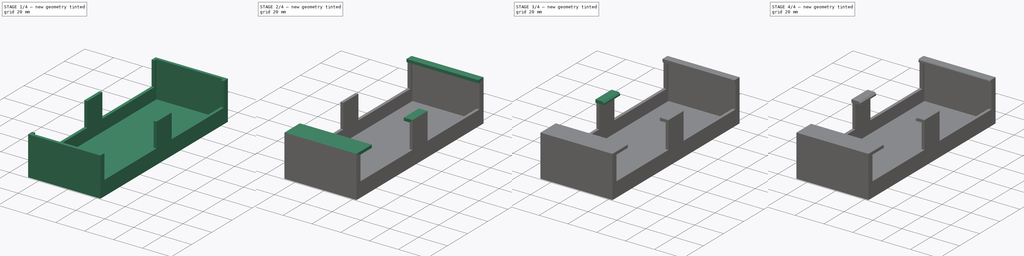
[diagram: build sequence overview — one tinted view per stage of 4, left to right]
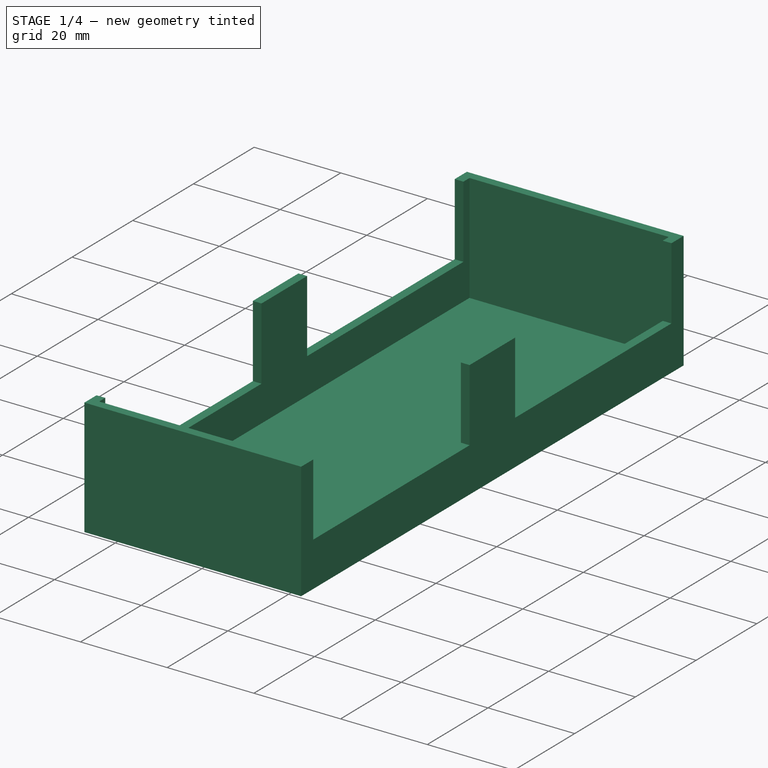
[diagram: stage 1 of 4 — iso view after this stage's code; geometry added in this stage tinted green]
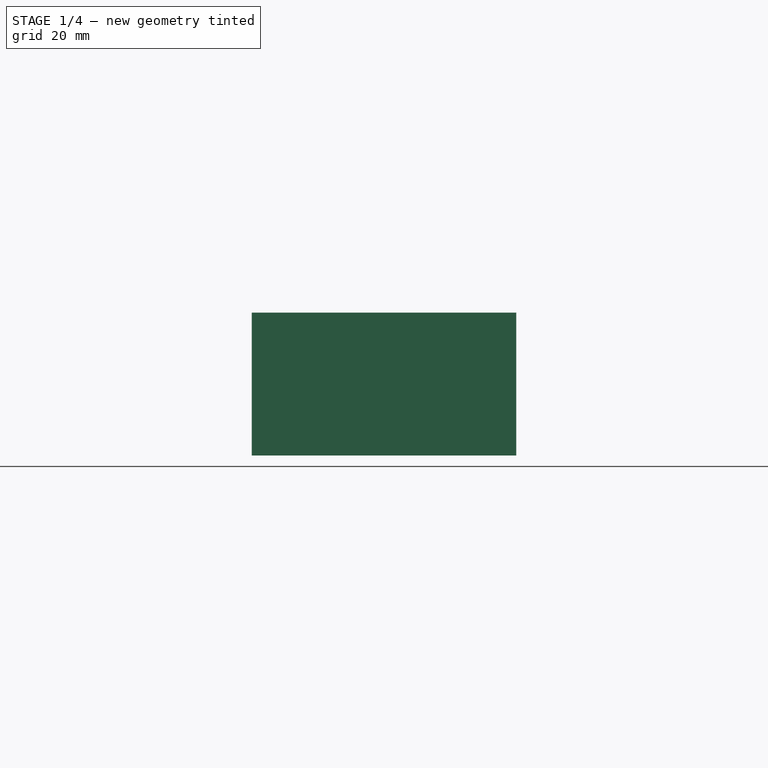
[diagram: stage 1 of 4 — front view after this stage's code; geometry added in this stage tinted green]
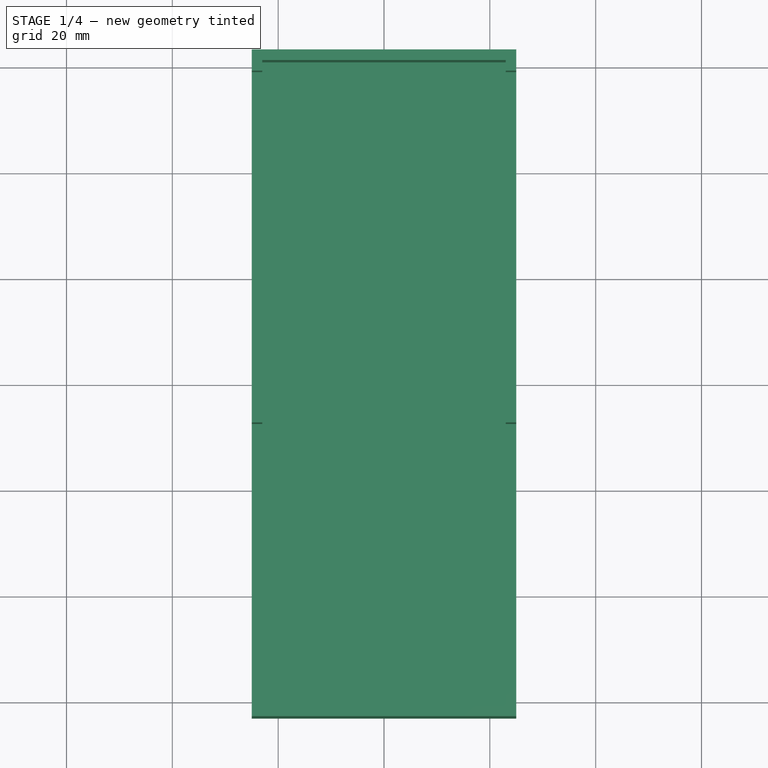
[diagram: stage 1 of 4 — top view after this stage's code; geometry added in this stage tinted green]
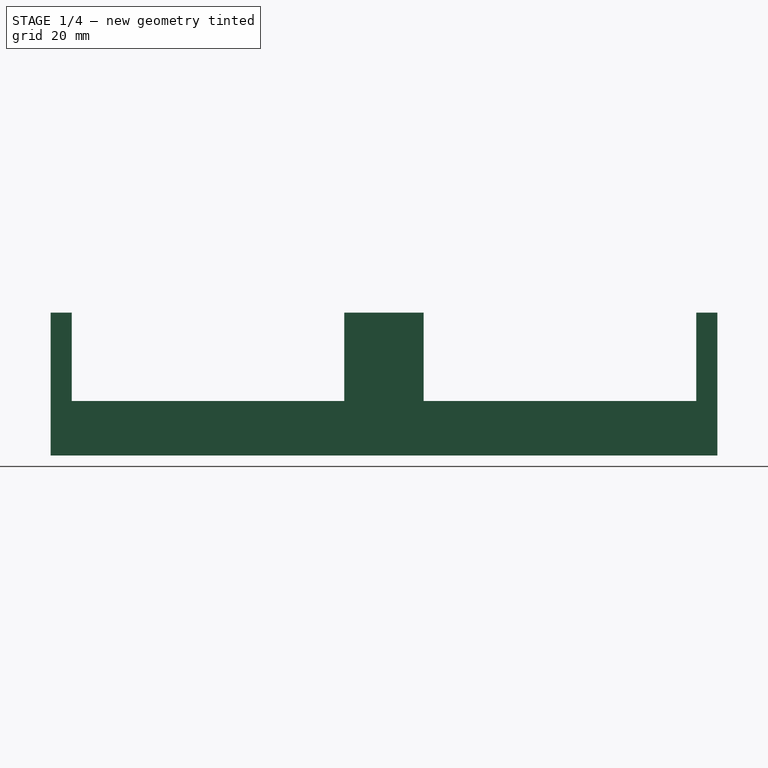
[diagram: stage 1 of 4 — right view after this stage's code; geometry added in this stage tinted green]
FCSTD DOCUMENT  (FreeCAD 1.0R39109 (Git))
Label: fisher-SBX1530K-remote-holder-v2
License: All rights reserved
LicenseURL: https://en.wikipedia.org/wiki/All_rights_reserved
objects: Sketcher::SketchObject×6, PartDesign::Pad×5, TechDraw::DrawProjGroupItem×3, PartDesign::Chamfer×2, PartDesign::Fillet×2, App::VarSet×1, PartDesign::Thickness×1, PartDesign::Pocket×1, PartDesign::Body×1, TechDraw::DrawSVGTemplate×1, TechDraw::DrawProjGroup×1, TechDraw::DrawPage×1
note: 46 computed .brp shape members not serialized (recipe doc carries the construction recipe); baked Part::Feature solids carry a one-line shape summary decoded from their .brp

FEATURE [Sketcher::SketchObject] Sketch
  ArcFitTolerance = 1e-06
  AttachmentSupport = -> [XY_Plane]
  FullyConstrained = true
  MakeInternals = false
  MapMode = 5
  expr: Constraints[10] = VarSet.width
  expr: Constraints[9] = VarSet.length
  sketch-geometry (4):
    g0: LineSegment StartX=-25 StartY=63 StartZ=0 EndX=-25 EndY=-63 EndZ=0
    g1: LineSegment StartX=-25 StartY=-63 StartZ=0 EndX=25 EndY=-63 EndZ=0
    g2: LineSegment StartX=25 StartY=-63 StartZ=0 EndX=25 EndY=63 EndZ=0
    g3: LineSegment StartX=25 StartY=63 StartZ=0 EndX=-25 EndY=63 EndZ=0
  constraints (11):
    c: Coincident(g0,g1)
    c: Coincident(g1,g2)
    c: Coincident(g2,g3)
    c: Coincident(g3,g0)
    c: Vertical(g0)
    c: Vertical(g2)
    c: Horizontal(g1)
    c: Horizontal(g3)
    c: Symmetric(g0,g1,g-1)
    c: DistanceY(g2,g2) = 126
    c: DistanceX(g3,g3) = 50
FEATURE [App::VarSet] VarSet
  box_depth = 27
  length = 126
  side_clip_width = 15
  width = 50
FEATURE [PartDesign::Pad] Pad
  Direction = (0,0,1)
  Length = 27
  Length2 = 10
  Profile = -> Sketch
  ReferenceAxis = -> Sketch [N_Axis]
  Refine = true
  Suppressed = false
  Type = 0
  expr: Length = VarSet.box_depth
FEATURE [PartDesign::Thickness] Thickness
  Base = -> Pad [Face6]
  BaseFeature = -> Pad
  Intersection = false
  Join = 0
  Mode = 0
  Refine = true
  Reversed = true
  SupportTransform = false
  Suppressed = false
  Value = 2
FEATURE [Sketcher::SketchObject] Sketch001
  ArcFitTolerance = 1e-06
  AttachmentSupport = -> [Thickness]
  ExternalGeometry = -> [Thickness]
  FullyConstrained = true
  MakeInternals = false
  MapMode = 5
  Placement = pos=(25,0,0) rot=(0.57735,0.57735,0.57735;2.0944rad)
  expr: Constraints[22] = VarSet.side_clip_width
  sketch-geometry (8):
    g0: LineSegment StartX=-59 StartY=27 StartZ=0 EndX=-59 EndY=10.28 EndZ=0
    g1: LineSegment StartX=-59 StartY=10.28 StartZ=0 EndX=-7.5 EndY=10.28 EndZ=0
    g2: LineSegment StartX=-7.5 StartY=10.28 StartZ=0 EndX=-7.5 EndY=27 EndZ=0
    g3: LineSegment StartX=-7.5 StartY=27 StartZ=0 EndX=-59 EndY=27 EndZ=0
    g4: LineSegment StartX=7.5 StartY=27 StartZ=0 EndX=7.5 EndY=10.28 EndZ=0
    g5: LineSegment StartX=7.5 StartY=10.28 StartZ=0 EndX=59 EndY=10.28 EndZ=0
    g6: LineSegment StartX=59 StartY=10.28 StartZ=0 EndX=59 EndY=27 EndZ=0
    g7: LineSegment StartX=59 StartY=27 StartZ=0 EndX=7.5 EndY=27 EndZ=0
  constraints (24):
    c: Coincident(g0,g1)
    c: Coincident(g1,g2)
    c: Coincident(g2,g3)
    c: Coincident(g3,g0)
    c: Vertical(g0)
    c: Vertical(g2)
    c: Horizontal(g1)
    c: Horizontal(g3)
    c: PointOnObject(g0,g-4)
    c: DistanceY(g0,g0) = 16.72
    c: Distance(g0,g-3) = 4
    c: Coincident(g4,g5)
    c: Coincident(g5,g6)
    c: Coincident(g6,g7)
    c: Coincident(g7,g4)
    c: Vertical(g4)
    c: Vertical(g6)
    c: Horizontal(g5)
    c: Horizontal(g7)
    c: PointOnObject(g4,g-4)
    c: Distance(g6,g-5) = 4
    c: Equal(g4,g2)
    c: DistanceX(g1,g4) = 15
    c: Equal(g3,g7)
FEATURE [PartDesign::Pocket] Pocket
  BaseFeature = -> Thickness
  Direction = (-1,0,0)
  Length = 5
  Length2 = 5
  Profile = -> Sketch001
  ReferenceAxis = -> Sketch001 [N_Axis]
  Refine = true
  Suppressed = false
  Type = 1
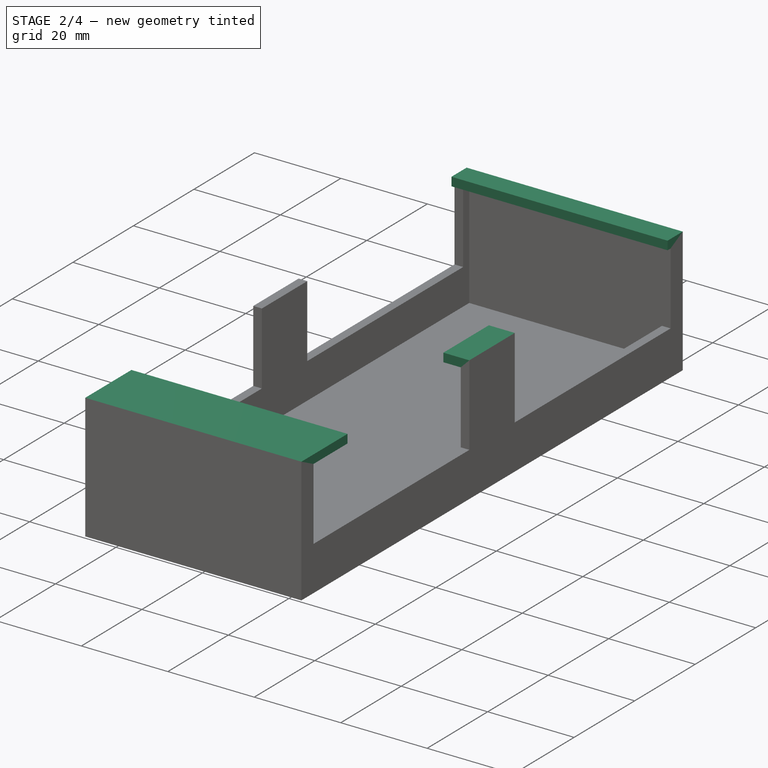
[diagram: stage 2 of 4 — iso view after this stage's code; geometry added in this stage tinted green]
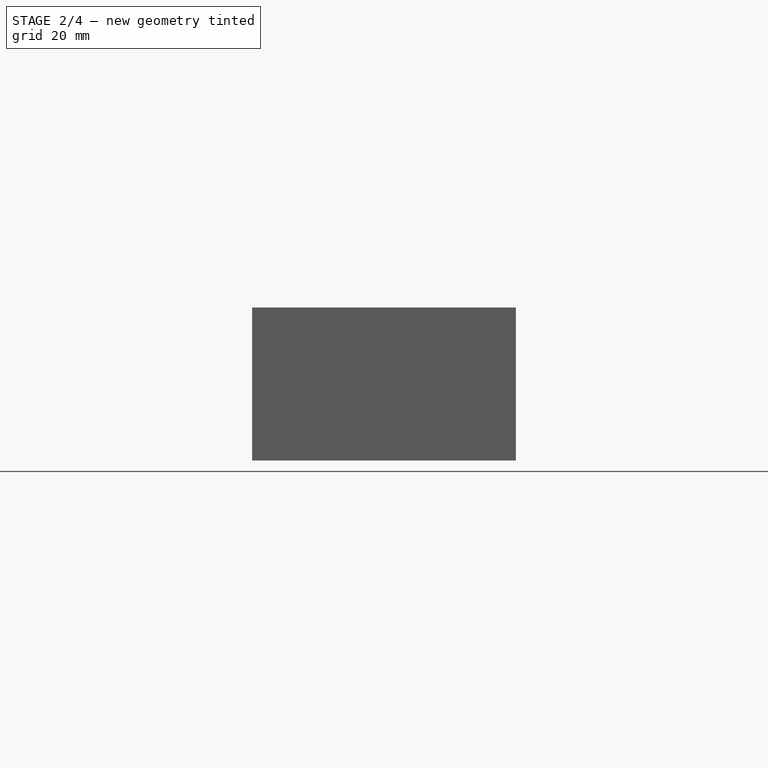
[diagram: stage 2 of 4 — front view after this stage's code; geometry added in this stage tinted green]
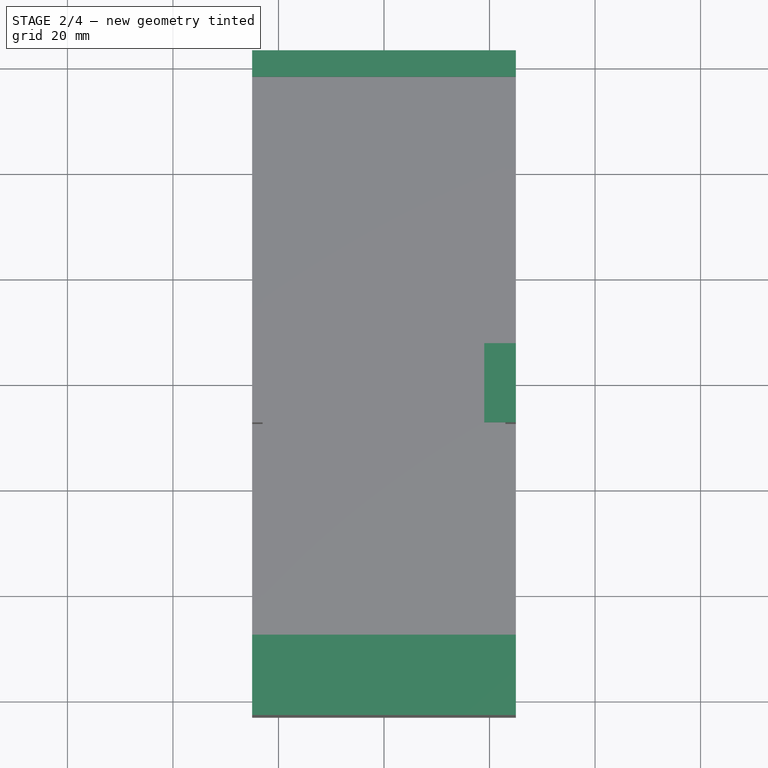
[diagram: stage 2 of 4 — top view after this stage's code; geometry added in this stage tinted green]
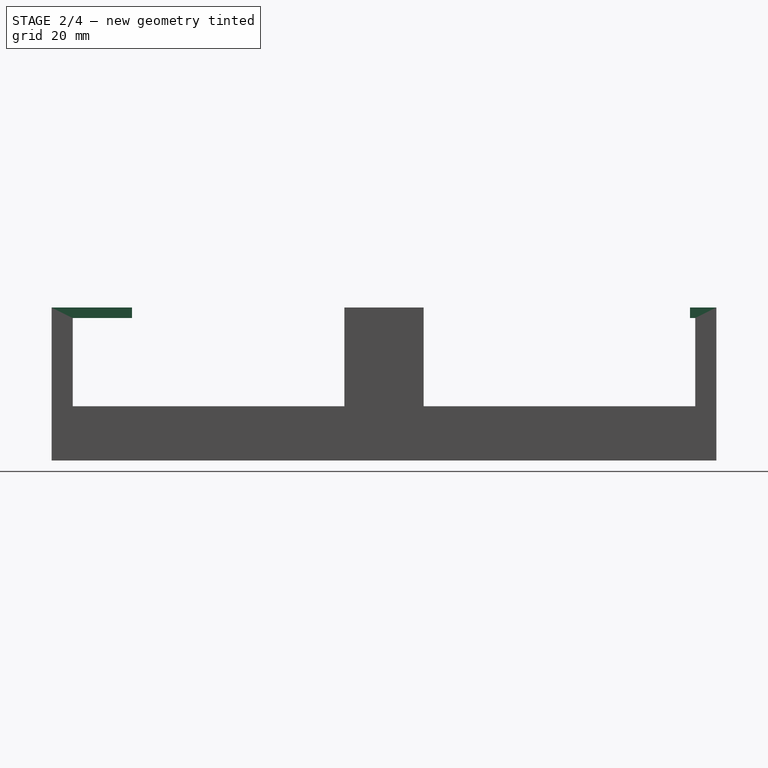
[diagram: stage 2 of 4 — right view after this stage's code; geometry added in this stage tinted green]
FEATURE [Sketcher::SketchObject] Sketch002
  ArcFitTolerance = 1e-06
  AttachmentSupport = -> [Pocket]
  ExternalGeometry = -> [Pocket]
  FullyConstrained = true
  MakeInternals = false
  MapMode = 5
  Placement = pos=(0,0,27) rot=(0,0,1;0rad)
  sketch-geometry (4):
    g0: LineSegment StartX=-25 StartY=-47.76 StartZ=0 EndX=-25 EndY=-63 EndZ=0
    g1: LineSegment StartX=-25 StartY=-63 StartZ=0 EndX=25 EndY=-63 EndZ=0
    g2: LineSegment StartX=25 StartY=-63 StartZ=0 EndX=25 EndY=-47.76 EndZ=0
    g3: LineSegment StartX=25 StartY=-47.76 StartZ=0 EndX=-25 EndY=-47.76 EndZ=0
  constraints (10):
    c: Coincident(g0,g1)
    c: Coincident(g1,g2)
    c: Coincident(g2,g3)
    c: Coincident(g3,g0)
    c: Vertical(g0)
    c: Vertical(g2)
    c: Horizontal(g3)
    c: Coincident(g1,g-3)
    c: DistanceY(g2,g2) = 15.24
    c: Coincident(g0,g-3)
FEATURE [PartDesign::Pad] Pad001
  BaseFeature = -> Pocket
  Direction = (0,0,1)
  Length = 2
  Length2 = 10
  Profile = -> Sketch002
  ReferenceAxis = -> Sketch002 [N_Axis]
  Refine = true
  Suppressed = false
  Type = 0
FEATURE [Sketcher::SketchObject] Sketch003
  ArcFitTolerance = 1e-06
  AttachmentSupport = -> [Pad001]
  ExternalGeometry = -> [Pad001]
  FullyConstrained = true
  MakeInternals = false
  MapMode = 5
  Placement = pos=(0,0,27) rot=(0,0,1;0rad)
  sketch-geometry (4):
    g0: LineSegment StartX=-25 StartY=63 StartZ=0 EndX=-25 EndY=58 EndZ=0
    g1: LineSegment StartX=-25 StartY=58 StartZ=0 EndX=25 EndY=58 EndZ=0
    g2: LineSegment StartX=25 StartY=58 StartZ=0 EndX=25 EndY=63 EndZ=0
    g3: LineSegment StartX=25 StartY=63 StartZ=0 EndX=-25 EndY=63 EndZ=0
  constraints (10):
    c: Coincident(g0,g1)
    c: Coincident(g1,g2)
    c: Coincident(g2,g3)
    c: Coincident(g3,g0)
    c: Vertical(g0)
    c: Vertical(g2)
    c: Horizontal(g1)
    c: Coincident(g0,g-4)
    c: DistanceY(g0,g0) = 5
    c: Coincident(g-4,g2)
FEATURE [PartDesign::Pad] Pad002
  BaseFeature = -> Pad001
  Direction = (0,0,1)
  Length = 2
  Length2 = 10
  Profile = -> Sketch003
  ReferenceAxis = -> Sketch003 [N_Axis]
  Refine = true
  Suppressed = false
  Type = 0
FEATURE [Sketcher::SketchObject] Sketch004
  ArcFitTolerance = 1e-06
  AttachmentSupport = -> [Pad002]
  ExternalGeometry = -> [Pad002]
  FullyConstrained = true
  MakeInternals = false
  MapMode = 5
  Placement = pos=(0,0,27) rot=(0,0,1;0rad)
  expr: Constraints[10] = VarSet.side_clip_width
  sketch-geometry (4):
    g0: LineSegment StartX=25 StartY=7.5 StartZ=0 EndX=19 EndY=7.5 EndZ=0
    g1: LineSegment StartX=19 StartY=7.5 StartZ=0 EndX=19 EndY=-7.5 EndZ=0
    g2: LineSegment StartX=19 StartY=-7.5 StartZ=0 EndX=25 EndY=-7.5 EndZ=0
    g3: LineSegment StartX=25 StartY=-7.5 StartZ=0 EndX=25 EndY=7.5 EndZ=0
  constraints (11):
    c: Coincident(g0,g1)
    c: Coincident(g1,g2)
    c: Coincident(g2,g3)
    c: Coincident(g3,g0)
    c: Horizontal(g0)
    c: Horizontal(g2)
    c: Vertical(g1)
    c: Vertical(g3)
    c: Coincident(g0,g-3)
    c: DistanceX(g0,g0) = 6
    c: DistanceY(g1,g1) = 15
FEATURE [PartDesign::Pad] Pad003
  BaseFeature = -> Pad002
  Direction = (0,0,1)
  Length = 2
  Length2 = 10
  Profile = -> Sketch004
  ReferenceAxis = -> Sketch004 [N_Axis]
  Refine = true
  Suppressed = false
  Type = 0
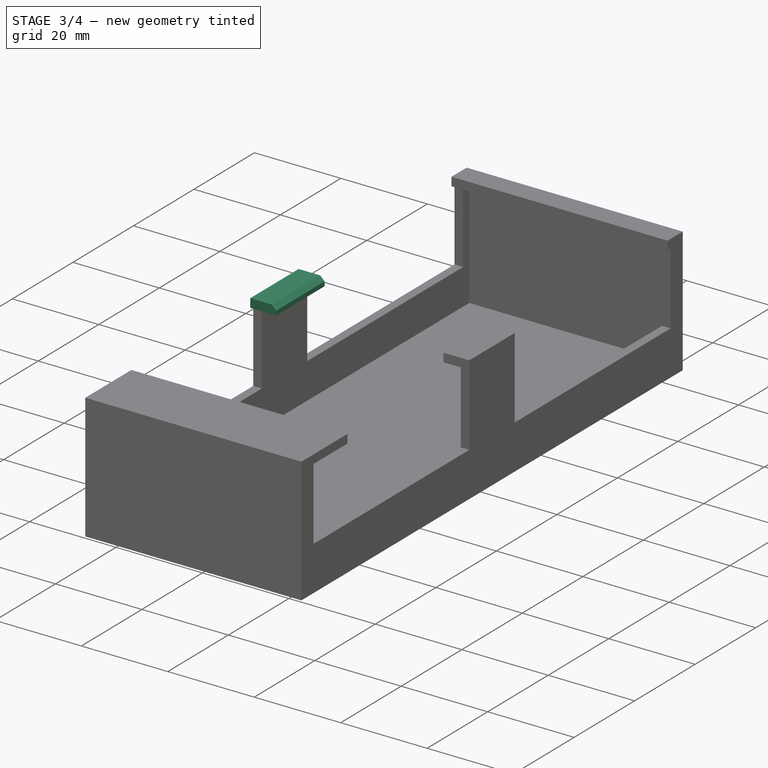
[diagram: stage 3 of 4 — iso view after this stage's code; geometry added in this stage tinted green]
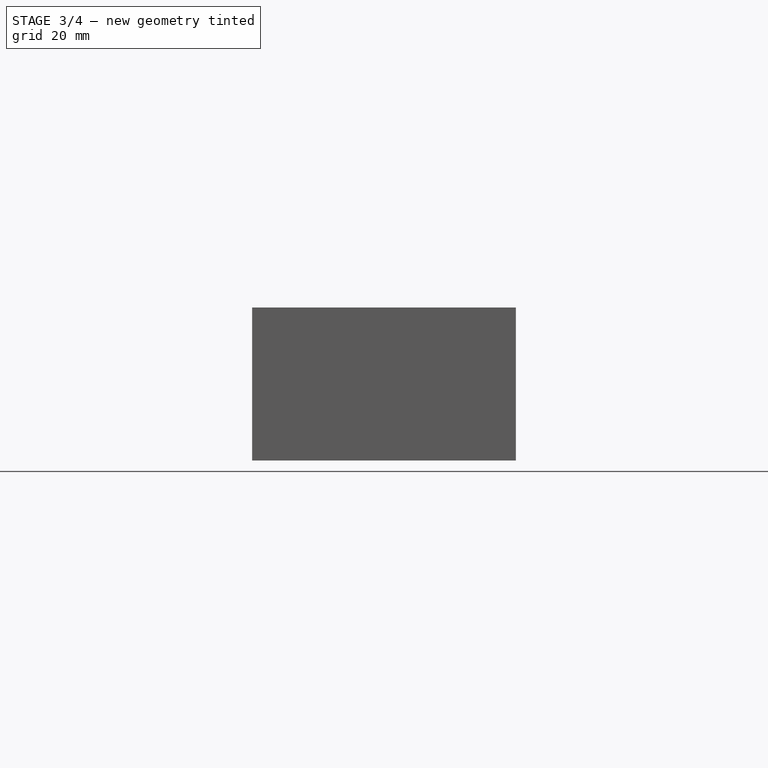
[diagram: stage 3 of 4 — front view after this stage's code; geometry added in this stage tinted green]
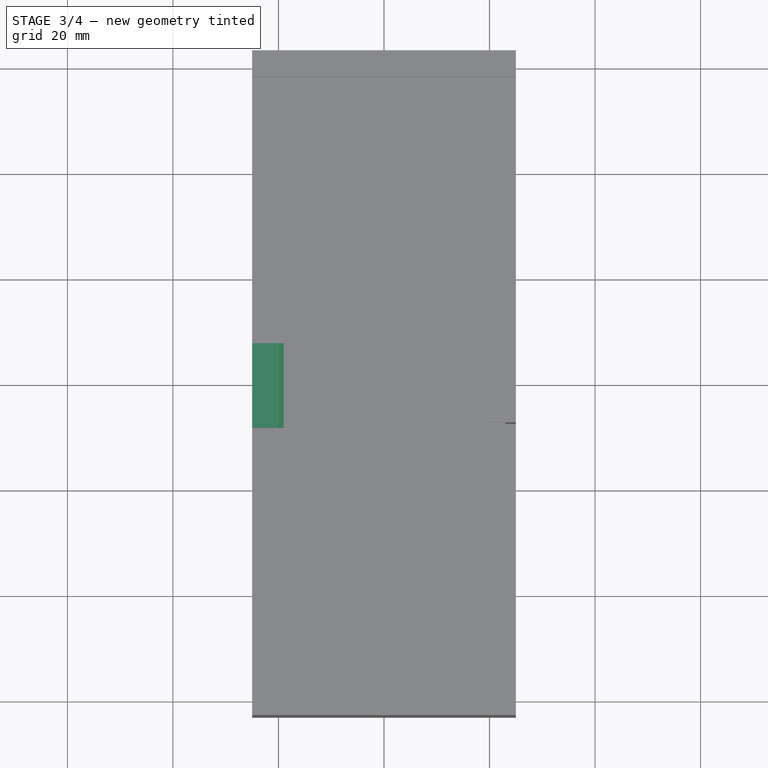
[diagram: stage 3 of 4 — top view after this stage's code; geometry added in this stage tinted green]
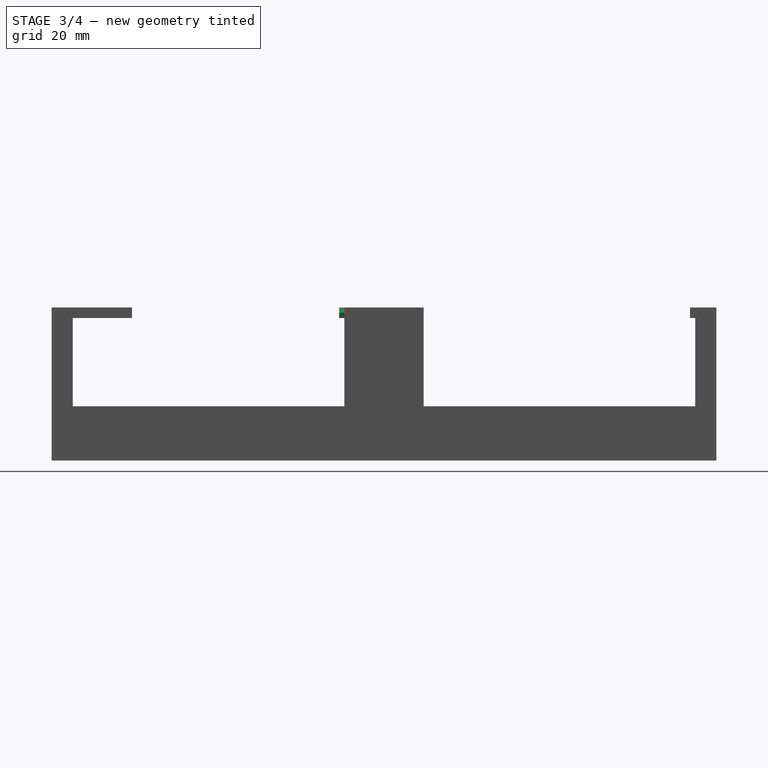
[diagram: stage 3 of 4 — right view after this stage's code; geometry added in this stage tinted green]
FEATURE [Sketcher::SketchObject] Sketch005
  ArcFitTolerance = 1e-06
  AttachmentSupport = -> [Pad003]
  ExternalGeometry = -> [Pad003]
  FullyConstrained = true
  MakeInternals = false
  MapMode = 5
  Placement = pos=(0,0,27) rot=(0,0,1;0rad)
  sketch-geometry (4):
    g0: LineSegment StartX=-25 StartY=7.5 StartZ=0 EndX=-25 EndY=-8.5 EndZ=0
    g1: LineSegment StartX=-25 StartY=-8.5 StartZ=0 EndX=-19 EndY=-8.5 EndZ=0
    g2: LineSegment StartX=-19 StartY=-8.5 StartZ=0 EndX=-19 EndY=7.5 EndZ=0
    g3: LineSegment StartX=-19 StartY=7.5 StartZ=0 EndX=-25 EndY=7.5 EndZ=0
  constraints (11):
    c: Coincident(g0,g1)
    c: Coincident(g1,g2)
    c: Coincident(g2,g3)
    c: Coincident(g3,g0)
    c: Vertical(g0)
    c: Vertical(g2)
    c: Horizontal(g1)
    c: Horizontal(g3)
    c: DistanceX(g3,g3) = 6
    c: DistanceY(g2,g2) = 16
    c: Coincident(g-3,g0)
FEATURE [PartDesign::Pad] Pad004
  BaseFeature = -> Pad003
  Direction = (0,0,1)
  Length = 2
  Length2 = 10
  Profile = -> Sketch005
  ReferenceAxis = -> Sketch005 [N_Axis]
  Refine = true
  Suppressed = false
  Type = 0
FEATURE [PartDesign::Chamfer] Chamfer
  Angle = 45
  Base = -> Pad004 [Edge96]
  BaseFeature = -> Pad004
  ChamferType = 0
  FlipDirection = false
  Refine = true
  Size = 1
  Size2 = 1
  SupportTransform = false
  Suppressed = false
  UseAllEdges = false
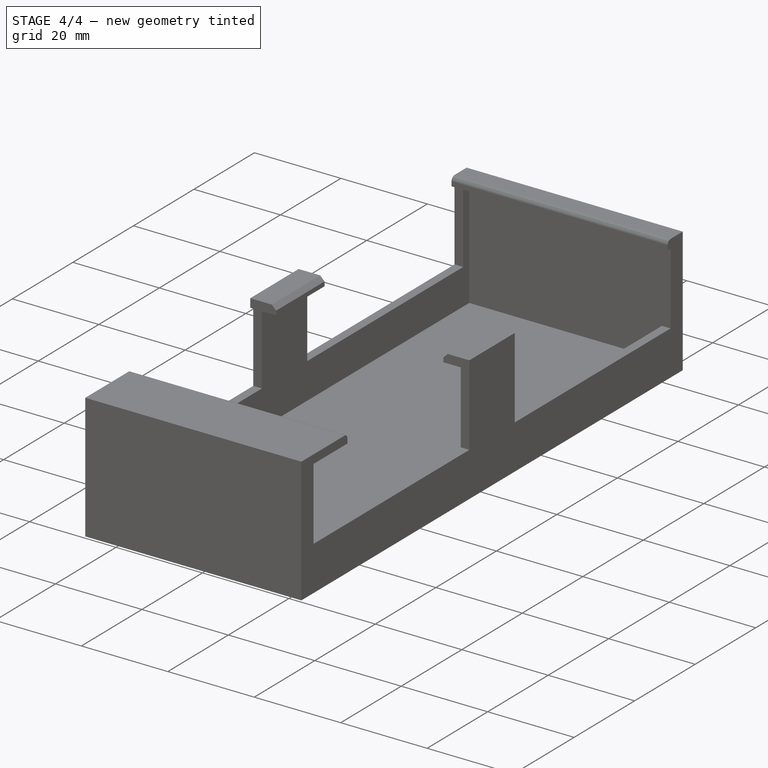
[diagram: stage 4 of 4 — iso view after this stage's code; geometry added in this stage tinted green]
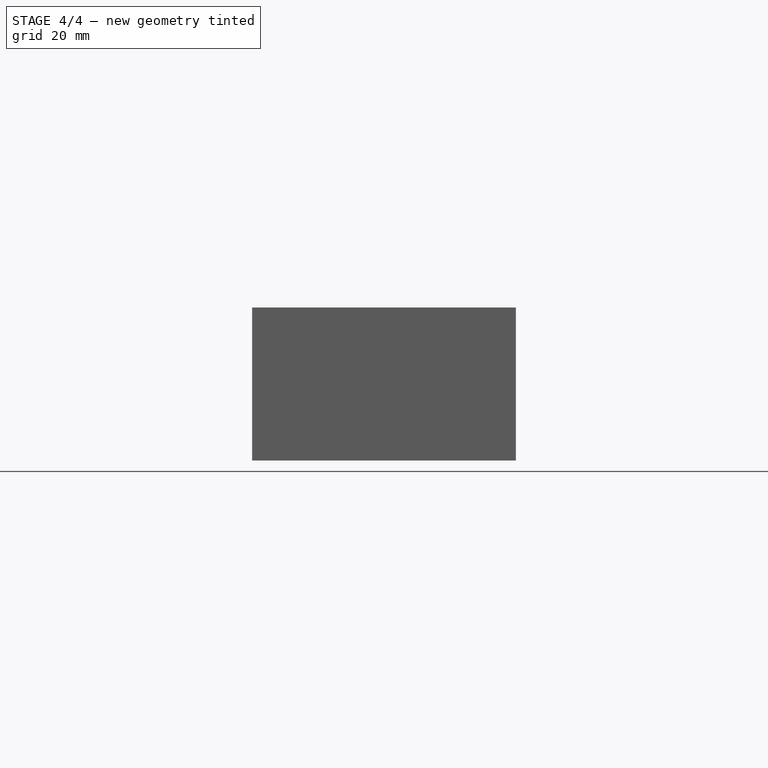
[diagram: stage 4 of 4 — front view after this stage's code; geometry added in this stage tinted green]
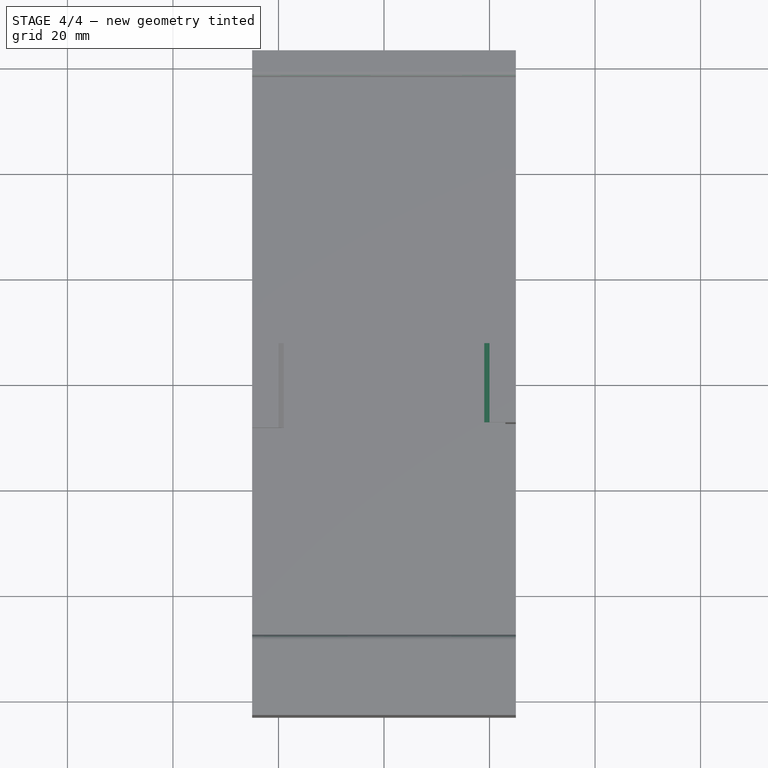
[diagram: stage 4 of 4 — top view after this stage's code; geometry added in this stage tinted green]
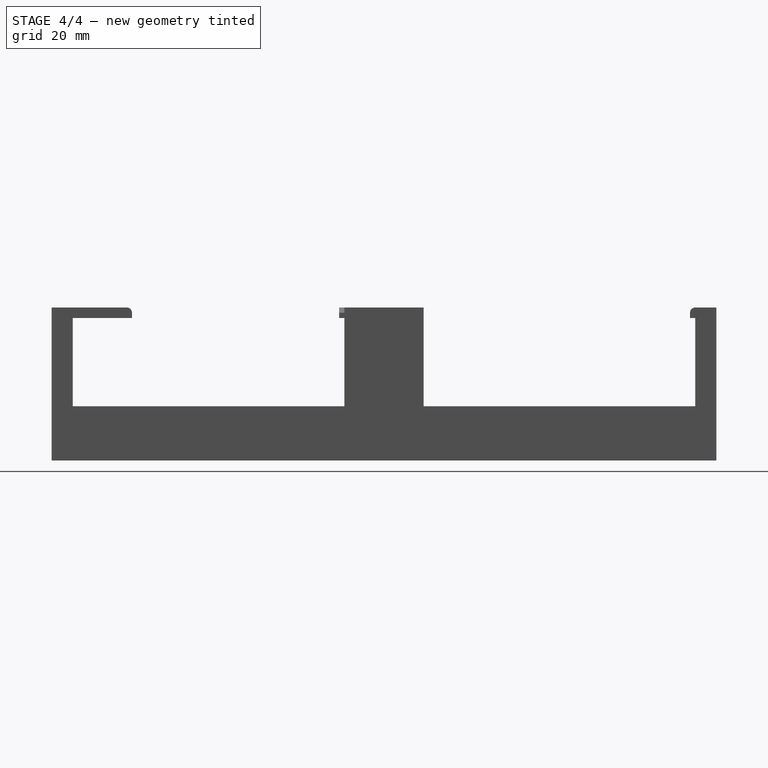
[diagram: stage 4 of 4 — right view after this stage's code; geometry added in this stage tinted green]
FEATURE [PartDesign::Chamfer] Chamfer001
  Angle = 45
  Base = -> Chamfer [Edge97]
  BaseFeature = -> Chamfer
  ChamferType = 0
  FlipDirection = false
  Refine = true
  Size = 1
  Size2 = 1
  SupportTransform = false
  Suppressed = false
  UseAllEdges = false
FEATURE [PartDesign::Fillet] Fillet
  Base = -> Chamfer001 [Edge67]
  BaseFeature = -> Chamfer001
  Radius = 1
  Refine = true
  SupportTransform = false
  Suppressed = false
  UseAllEdges = false
FEATURE [PartDesign::Fillet] Fillet001
  Base = -> Fillet [Edge40]
  BaseFeature = -> Fillet
  Radius = 1
  Refine = true
  SupportTransform = false
  Suppressed = false
  UseAllEdges = false
FEATURE [PartDesign::Body] Body
  AllowCompound = false
  Group = -> [Sketch,Pad,Thickness,Sketch001,Pocket,Sketch002,Pad001,Sketch003,Pad002,Sketch004,Pad003,Sketch005,Pad004,Chamfer,Chamfer001,Fillet,Fillet001]
  Origin = -> Origin
  Tip = -> Fillet001
FEATURE [TechDraw::DrawSVGTemplate] Template
  Height = 210
  Orientation = 1
  Template = C:/Program Files/FreeCAD 1.0/data/Mod/TechDraw/Templates/Default_Template_A4_Landscape.svg
  Width = 297
FEATURE [TechDraw::DrawProjGroupItem] ProjItem  label="Front"
  CoarseView = false
  Direction = (0.409575,-0.709407,0.573577)
  Focus = 100
  HardHidden = false
  IsoCount = 0
  IsoHidden = false
  IsoVisible = false
  LockPosition = true
  Perspective = false
  Rotation = 0
  RotationVector = (0.866026,0.499999,4.05816e-07)
  Scale = 0.75
  ScaleType = 2
  ScrubCount = 1
  SeamHidden = false
  SeamVisible = false
  SmoothHidden = false
  SmoothVisible = true
  Source = -> [Body]
  Type = 0
  X = 0
  XDirection = (0.866026,0.499999,4.05816e-07)
  Y = 0
FEATURE [TechDraw::DrawProjGroupItem] ProjItem001  label="Right"
  CoarseView = false
  Direction = (0.866026,0.499999,4.05816e-07)
  Focus = 100
  HardHidden = false
  IsoCount = 0
  IsoHidden = false
  IsoVisible = false
  LockPosition = false
  Perspective = false
  Rotation = 0
  RotationVector = (1,0,0)
  Scale = 0.75
  ScaleType = 2
  ScrubCount = 1
  SeamHidden = false
  SeamVisible = false
  SmoothHidden = false
  SmoothVisible = true
  Source = -> [Body]
  Type = 2
  X = 105.733
  XDirection = (-0.409575,0.709407,-0.573577)
  Y = 0
FEATURE [TechDraw::DrawProjGroupItem] ProjItem002  label="FrontBottomRight"
  CoarseView = false
  Direction = (0.902046,-0.40769,-0.141783)
  Focus = 100
  HardHidden = false
  IsoCount = 0
  IsoHidden = false
  IsoVisible = false
  LockPosition = false
  Perspective = false
  Rotation = 0
  RotationVector = (1,0,0)
  Scale = 0.75
  ScaleType = 2
  ScrubCount = 1
  SeamHidden = false
  SeamVisible = false
  SmoothHidden = false
  SmoothVisible = true
  Source = -> [Body]
  Type = 9
  X = 105.733
  XDirection = (0.32276,0.855179,-0.40558)
  Y = -83.0742
FEATURE [TechDraw::DrawProjGroup] ProjGroup
  Anchor = -> ProjItem
  AutoDistribute = true
  LockPosition = false
  ProjectionType = 1
  Rotation = 0
  Scale = 0.75
  ScaleType = 1
  Source = -> [Body]
  Views = -> [ProjItem,ProjItem001,ProjItem002]
  X = 91.0528
  Y = 157.225
  spacingX = 15
  spacingY = 15
FEATURE [TechDraw::DrawPage] Page
  KeepUpdated = true
  NextBalloonIndex = 1
  ProjectionType = 0
  Template = -> Template
  Views = -> [ProjGroup]
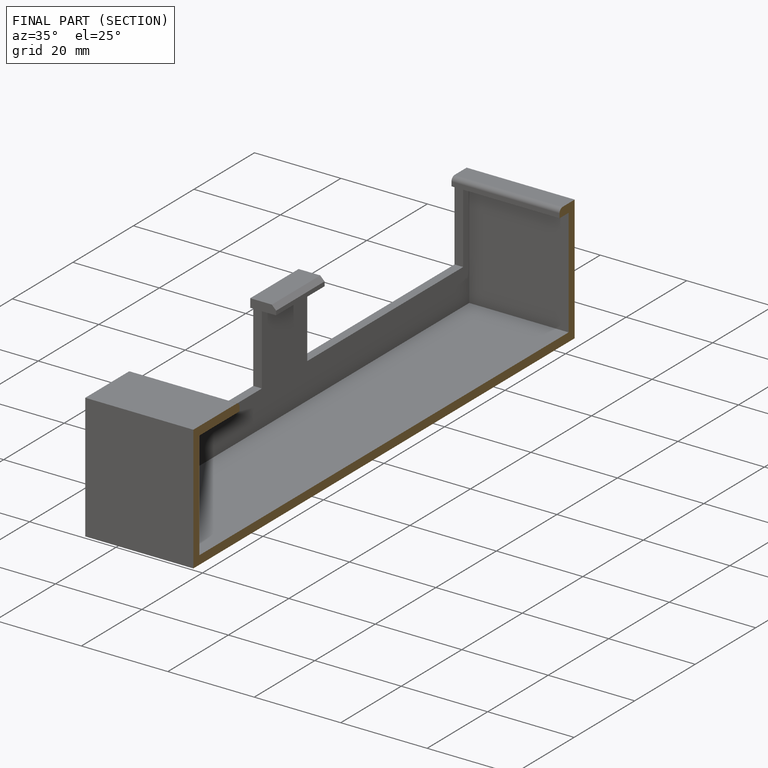
[diagram: finished part — half-section view (interior)]
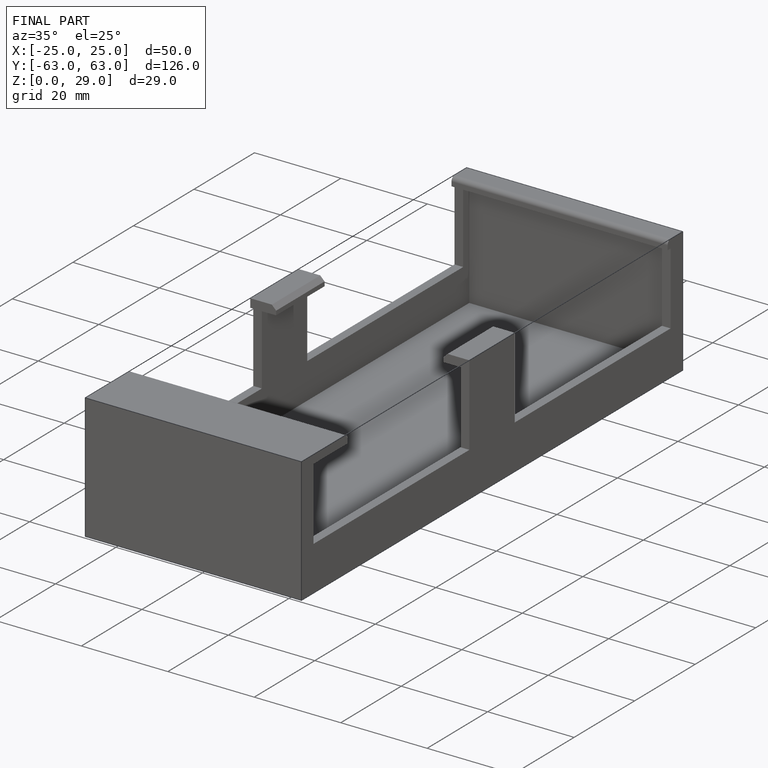
[diagram: finished part — iso view with bounding-box wireframe]
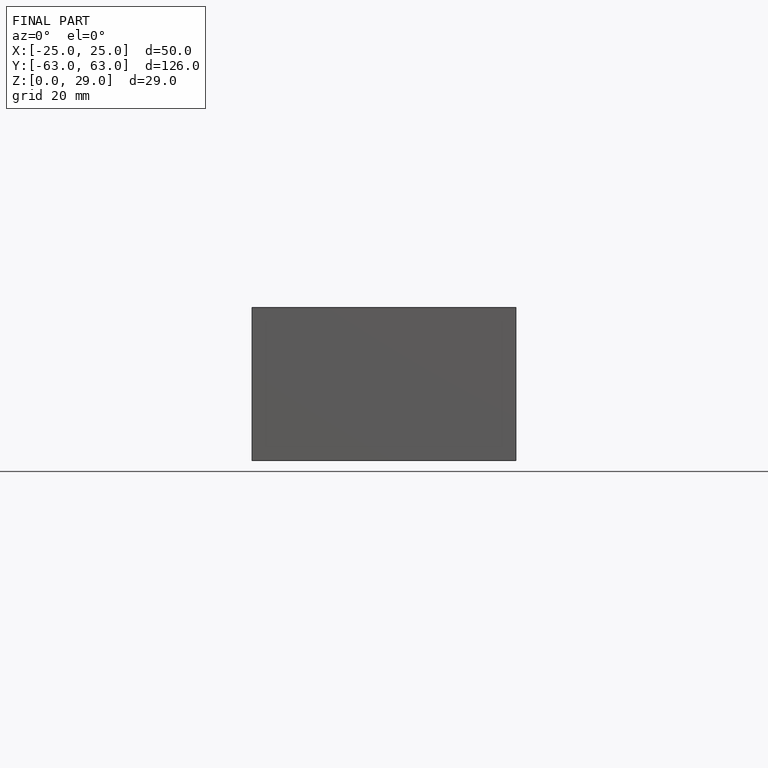
[diagram: finished part — front view with bounding-box wireframe]
